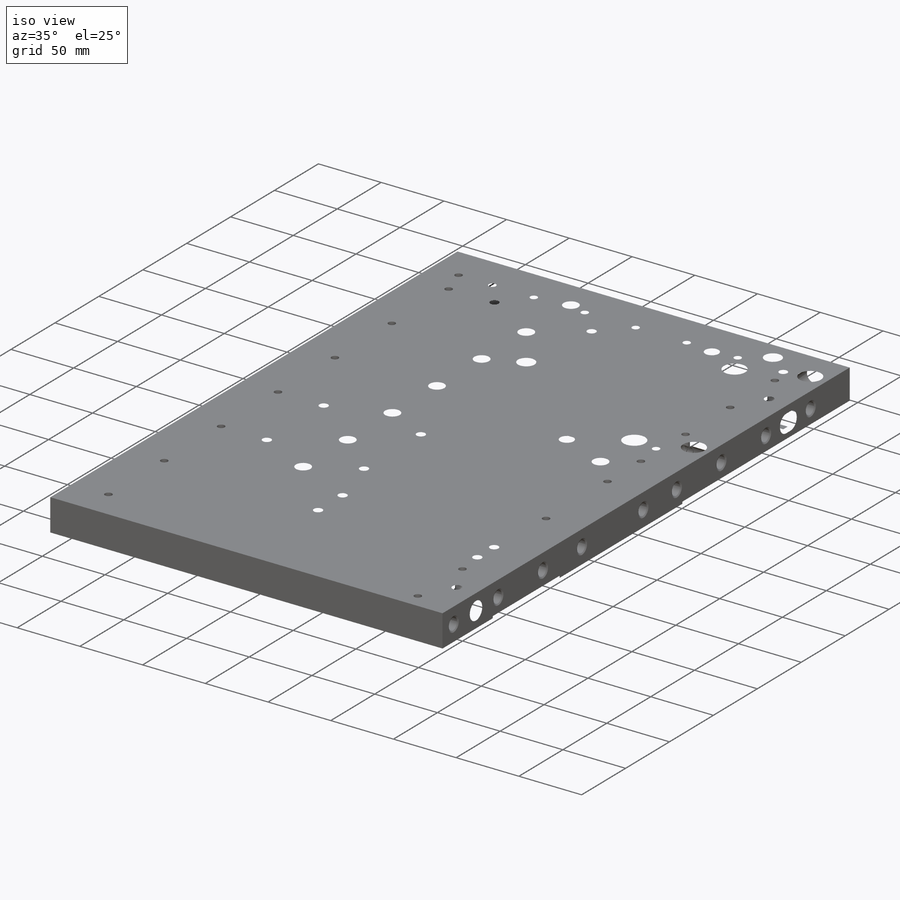
[diagram: iso view]
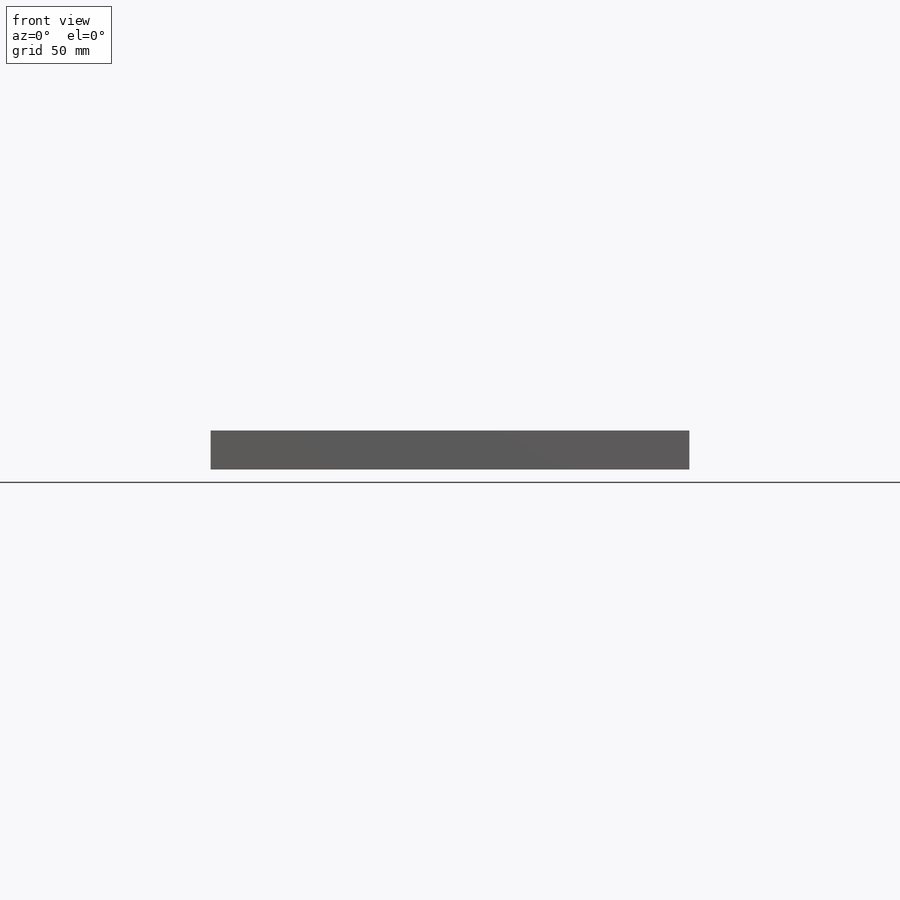
[diagram: front view]
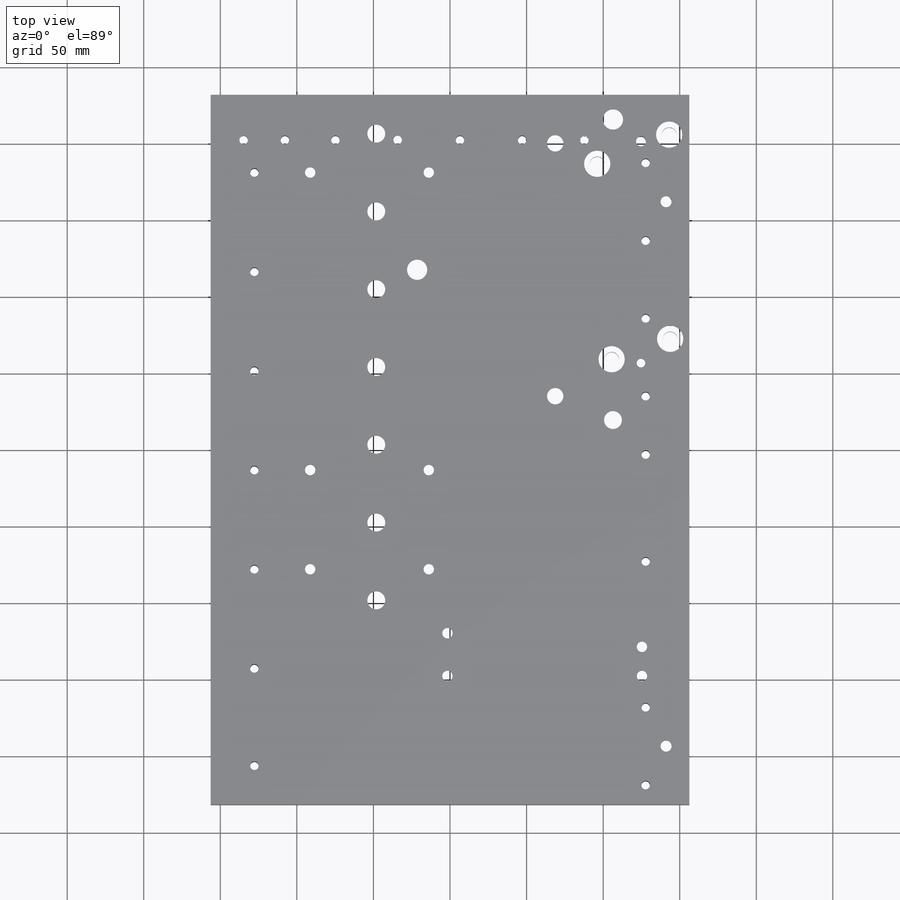
[diagram: top view]
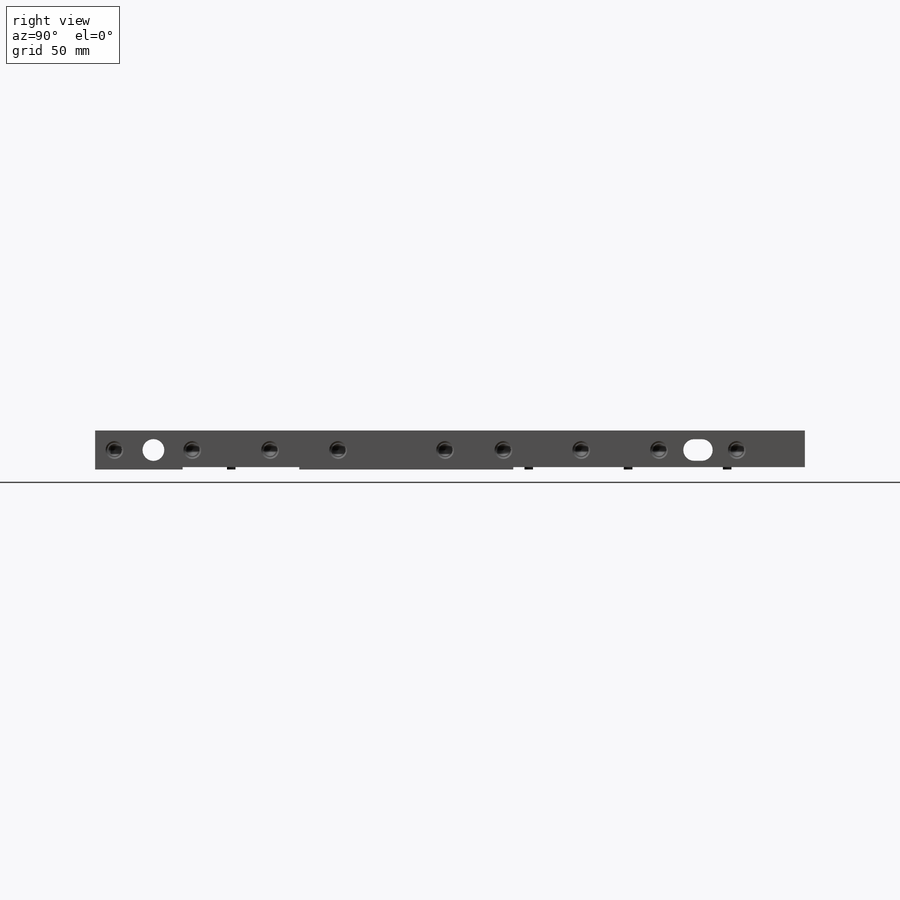
[diagram: right view]
SOLIDWORKS PART (.sldprt)
format: sldprt  version: not decoded by parser v0  size: 1,657,344 bytes
history: native  units: mm
features: sketch x45, hole x20, cut_extrude x4, chamfer x2, material x1, extrude x1, fillet x1 (+16 scaffold rows collapsed)
feature tree (90):
  scaffold x16  (default folders/planes/origin — collapsed)
  material  "6061-T6 Al"
  sketch  "Sketch1"  dims[D1=312.674mm D2=463.55mm]
  extrude  "Extrude1"  Depth=25.4mm
  hole  "3/8-16 Tapped Hole1"  Diameter=7.9375mm Depth=31.75mm
  sketch  "Sketch3"  dims[D1=50.8mm D2=115.57mm D3=180.34mm D4=245.11mm D5=309.88mm D6=374.65mm D7=438.15mm]
  sketch  "Sketch4"  dims[hole-wizard template sketch: 27 standard entries collapsed; hole parameters kept: c8.Tap Drill Depth=31.75mm c8.Thread Major Dia.=9.525mm c8.Thread Depth=25.4mm c8.Near C'Sink Dia.=11.684mm c8.D6=~4.399409mm c8.Near C'Sink Angle=120.0deg c8.D7=~14.816244mm c8.Drill Angle=118.0deg]
  hole  "7/32 (0.21875) Diameter Hole1"  Diameter=5.55625mm Depth=25.4mm
  sketch  "Sketch6"  dims[D1=28.575mm D2=50.8mm D3=115.57mm D4=180.34mm D5=245.11mm D6=309.88mm D7=374.65mm D8=438.15mm]
  sketch  "Sketch5"  dims[hole-wizard template sketch: 61 standard entries collapsed; hole parameters above]
  hole  "3/8-16 Tapped Hole2"  Diameter=7.9375mm Depth=31.75mm
  sketch  "Sketch8"  dims[D1=12.7mm D2=63.5mm D3=114.3mm D4=158.75mm D5=228.6mm D6=266.7mm D7=368.3mm D8=317.5mm D9=419.1mm D10=444.5mm]
  sketch  "Sketch7"  dims[hole-wizard template sketch: 27 standard entries collapsed; hole parameters kept: c8.Tap Drill Depth=31.75mm c8.Thread Major Dia.=9.525mm c8.Thread Depth=25.4mm c8.Near C'Sink Dia.=11.684mm c8.D6=~4.399409mm c8.Near C'Sink Angle=120.0deg c8.D7=~14.816244mm c8.Drill Angle=118.0deg]
  hole  "7/32 (0.21875) Diameter Hole2"  Diameter=5.55625mm Depth=25.4mm
  sketch  "Sketch10"  dims[c1.D1=28.575mm c1.D2=12.7mm c1.D3=12.7mm c1.D4=63.5mm c1.D5=114.3mm c1.D6=158.75mm c1.D7=228.6mm c1.D8=266.7mm c1.D9=317.5mm c1.D10=368.3mm c1.D11=419.1mm c1.D12=450.85mm c2.D2=444.5mm]
  sketch  "Sketch9"  dims[hole-wizard template sketch: 61 standard entries collapsed; hole parameters above]
  hole  "Tapped Hole for 3/8-16 Helicoil1"  Diameter=10.0838mm Depth=33.02mm
  sketch  "Sketch12"  dims[D1=27.94mm D2=44.45mm D3=40.64mm D4=40.64mm D5=40.64mm D6=40.64mm D7=40.64mm D8=33.02mm D9=31.75mm D10=31.75mm]
  sketch  "Sketch11"  dims[hole-wizard template sketch: 27 standard entries collapsed; hole parameters kept: c8.Tap Drill Depth=33.02mm c8.Thread Major Dia.=~11.68908mm c8.Thread Depth=22.86mm c8.Near C'Sink Dia.=13.208mm c8.D6=~4.399409mm c8.Near C'Sink Angle=120.0deg c8.D7=~14.816244mm c8.Drill Angle=118.0deg]
  hole  "7/32 (0.21875) Diameter Hole3"  Diameter=5.55625mm Depth=25.4mm
  sketch  "Sketch14"  dims[c1.D1=29.5656mm c1.D2=29.337mm c1.D3=31.75mm c1.D4=31.75mm c1.D5=31.75mm c1.D6=31.75mm c1.D7=31.75mm c1.D8=31.75mm c1.D9=31.75mm c1.D10=31.75mm c2.D2=25.4mm c2.D3=40.64mm c2.D4=40.64mm c2.D5=40.64mm c2.D6=40.64mm c2.D7=40.64mm c2.D8=8.763mm c3.D7=40.64mm c3.D8=40.64mm c3.D2=40.64mm c3.D3=68.58mm c4.D2=33.02mm c4.D8=291.084mm]
  sketch  "Sketch13"  dims[hole-wizard template sketch: 61 standard entries collapsed; hole parameters above]
  sketch  "Sketch15"  dims[c1.D1=9.525mm c1.D2=~4.77139mm c1.D3=5.08mm c1.D4=88.9mm c1.D5=342.9mm c2.D1=69.85mm]
  cut_extrude  "Extrude2"  Depth=19.05mm
  hole  "3/8 (0.375) Diameter Hole1"  Diameter=9.54278mm Depth=19.05mm
  sketch  "Sketch17"  dims[D1=12.7mm D2=38.1mm]
  sketch  "Sketch16"  dims[hole-wizard template sketch: 46 standard entries collapsed; hole parameters above]
  chamfer  "Chamfer1"  Distance=2.286mm Angle=45deg
  hole  "CBORE for 3/8 Socket Head Cap Screw1"  Diameter=9.8044mm Depth=25.4mm
  sketch  "Sketch19"  dims[D1=26.035mm D2=45.085mm D3=13.208mm D4=60.198mm D5=12.573mm D6=50.8mm D7=159.385mm D8=172.72mm]
  sketch  "Sketch18"  dims[hole-wizard template sketch: 41 standard entries collapsed; hole parameters kept: c12.Thru Hole Dia.=9.8044mm c12.Thru Hole Depth=25.4mm c12.C'Bore Dia.=15.875mm c12.C'Bore Depth=9.525mm c12.Near C'Sink Dia.=17.145mm c12.D6=~4.399409mm c12.Near C'Sink Angle=90.0deg]
  sketch  "Sketch20"  dims[c1.D1=~202.138991mm c1.D2=~110.782187mm c2.D1=101.6mm c2.D2=190.5mm]
  cut_extrude  "Cut-Extrude1"  Depth=1.524mm
  fillet  "Fillet1"  Radius=12.7mm
  sketch  "Sketch21"  dims[c1.D1=~7.868878mm c1.D3=~6.36778mm c1.D4=~3.18389mm c2.D1=144.78mm c2.D2=3.302mm c2.D4=30.48mm c2.D5=31.623mm c3.D1=31.623mm c3.D3=175.26mm]
  cut_extrude  "Cut-Extrude2"  Depth=9.652mm
  chamfer  "Chamfer2"  Distance=1.524mm Angle=45deg
  hole  "1/4 DOWEL HOLE"  Diameter=6.36778mm Depth=23.876mm
  sketch  "Sketch45"  dims[D1=30.48mm D2=31.623mm]
  sketch  "Sketch44"  dims[hole-wizard template sketch: 54 standard entries collapsed; hole parameters kept: c17.Thru Hole Dia.=~6.36778mm c17.Thru Hole Depth=23.876mm c17.Near C'Sink Dia.=9.652mm c17.D4=~3.666174mm c17.Near C'Sink Angle=90.0deg]
  hole  "7/32 (0.21875) Diameter Hole5"  Diameter=5.55625mm Depth=14.224mm
  sketch  "Sketch23"  dims[D1=31.623mm D2=175.26mm D3=30.48mm D4=31.623mm]
  sketch  "Sketch22"  dims[hole-wizard template sketch: 60 standard entries collapsed; hole parameters kept: c18.Thru Hole Depth=14.224mm]
  sketch  "Sketch24"  dims[c1.D5=12.7mm c1.D1=~68.582078mm c1.D2=~166.433494mm c2.D1=76.2mm c2.D2=184.15mm c2.D3=9.525mm c2.D4=57.15mm]
  cut_extrude  "Cut-Extrude3"  Depth=1.524mm
  hole  "Tapped Hole for 1/4-20 Helicoil2"  Diameter=6.7564mm Depth=25.4mm
  sketch  "Sketch49"  dims[D1=65.024mm D2=77.47mm]
  sketch  "Sketch50"  dims[hole-wizard template sketch: 44 standard entries collapsed; hole parameters kept: c12.Thread Depth=15.748mm c12.Near C'Sink Dia.=~9.36498mm c12.D6=~4.399409mm c12.Near C'Sink Angle=120.0deg]
  hole  "Tapped Hole for 1/4-20 Helicoil1"  Diameter=6.7564mm Depth=23.876mm
  sketch  "Sketch27"  dims[c1.D1=83.947mm c1.D2=111.887mm c1.D3=157.988mm c1.D4=30.988mm c2.D2=27.94mm c2.D5=19.05mm]
  sketch  "Sketch26"  dims[hole-wizard template sketch: 42 standard entries collapsed; hole parameters kept: c12.Thru Tap Drill Depth=23.876mm c12.Thread Major Dia.=~8.09498mm c12.Thread Depth=15.748mm c12.Near C'Sink Dia.=9.144mm c12.D6=~4.399409mm c12.Near C'Sink Angle=120.0deg]
  hole  "L4C Holes Tapped Hole for 3/8-16 Helicoil2"  Diameter=10.0838mm Depth=25.4mm
  sketch  "Sketch29"  dims[c1.D1=101.6mm c1.D2=101.6mm c1.D3=101.6mm c1.D4=88.9mm c2.D4=105.0deg c2.D5=88.9mm c3.D5=105.0deg c3.D6=114.3mm c3.D7=81.28mm c4.D6=114.3mm c4.D7=76.2mm]
  sketch  "Sketch28"  dims[hole-wizard template sketch: 42 standard entries collapsed; hole parameters kept: c12.Thru Tap Drill Depth=25.4mm c12.Thread Major Dia.=~11.68908mm c12.Thread Depth=22.86mm c12.Near C'Sink Dia.=13.208mm c12.D6=~4.399409mm c12.Near C'Sink Angle=120.0deg]
  hole  "Holes for Pins 3/8 Clearance Hole1"  Diameter=9.525mm Depth=15.24mm
  sketch  "Sketch31"  dims[D1=87.63mm D2=165.1mm]
  sketch  "Sketch30"  dims[hole-wizard template sketch: 28 standard entries collapsed; hole parameters kept: c8.C'Bore Dia.=9.5758mm c8.C'Bore Depth=3.302mm c8.Near C'Sink Dia.=10.668mm c8.D6=~4.399409mm c8.Near C'Sink Angle=90.0deg c8.D7=~14.816244mm c8.Drill Angle=90.0deg]
  hole  "Vent Holes for Pins 7/32 (0.21875) Diameter Hole4"  Diameter=7.14375mm Depth=25.4mm
  sketch  "Sketch33"
  sketch  "Sketch32"  dims[hole-wizard template sketch: 60 standard entries collapsed; hole parameters kept: c18.Thru Hole Depth=25.4mm]
  hole  "3/8-16 Tapped Hole3"  Diameter=9.525mm Depth=25.4mm
  sketch  "Sketch35"  dims[D1=108.204mm D2=25.4mm D3=76.2mm D4=127.0mm D5=177.8mm D6=228.6mm D7=279.4mm D8=330.2mm D9=381.0mm]
  sketch  "Sketch34"  dims[hole-wizard template sketch: 54 standard entries collapsed; hole parameters kept: c17.Thread Major Dia.=9.525mm c17.Thru Tap Drill Depth=25.4mm c17.Near C'Sink Dia.=11.684mm c17.D4=~3.666174mm c17.Near C'Sink Angle=120.0deg]
  hole  "9/32 (0.28125) Diameter Hole1"  Diameter=7.14375mm Depth=25.4mm
  sketch  "Sketch37"  dims[D1=15.24mm D2=69.85mm D3=38.1mm]
  sketch  "Sketch36"  dims[hole-wizard template sketch: 60 standard entries collapsed; hole parameters kept: c18.Thru Hole Depth=25.4mm]
  hole  "CBORE for 3/8 Socket Head Cap Screw2"  Diameter=10.31748mm Depth=25.4mm
  sketch  "Sketch39"
  sketch  "Sketch38"  dims[hole-wizard template sketch: 43 standard entries collapsed; hole parameters kept: c12.C'Bore Dia.=17.4752mm c12.C'Bore Depth=12.7mm c12.Far C'Sink Dia.=11.684mm c12.D6=~2.963249mm c12.Far C'Sink Angle=82.0deg]
  hole  "CBORE for 3/8 Socket Head Cap Screw3"  Diameter=9.525mm Depth=15.24mm
  sketch  "Sketch41"  dims[D1=~29.560198mm D2=12.7mm]
  sketch  "Sketch40"  dims[hole-wizard template sketch: 28 standard entries collapsed; hole parameters kept: c8.C'Bore Dia.=9.5758mm c8.C'Bore Depth=3.302mm c8.Near C'Sink Dia.=10.668mm c8.D6=~4.399409mm c8.Near C'Sink Angle=90.0deg c8.D7=~14.816244mm c8.Drill Angle=118.0deg]
  hole  "9/32 (0.28125) Diameter Hole2"  Diameter=6.35mm Depth=25.4mm
  sketch  "Sketch47"
  sketch  "Sketch46"  dims[hole-wizard template sketch: 47 standard entries collapsed; hole parameters kept: c15.Hole Depth=25.4mm c15.D3=~14.816244mm c15.Drill Angle=120.0deg]
decode coverage: 70 of 73 modeling features carry decoded parameters
note: ~ marks probable driven/reference dimensions
summary: Diameter pulled from absorbed wizard sketch
note: suppression state not decoded; provenance and decode notes live in map.json
